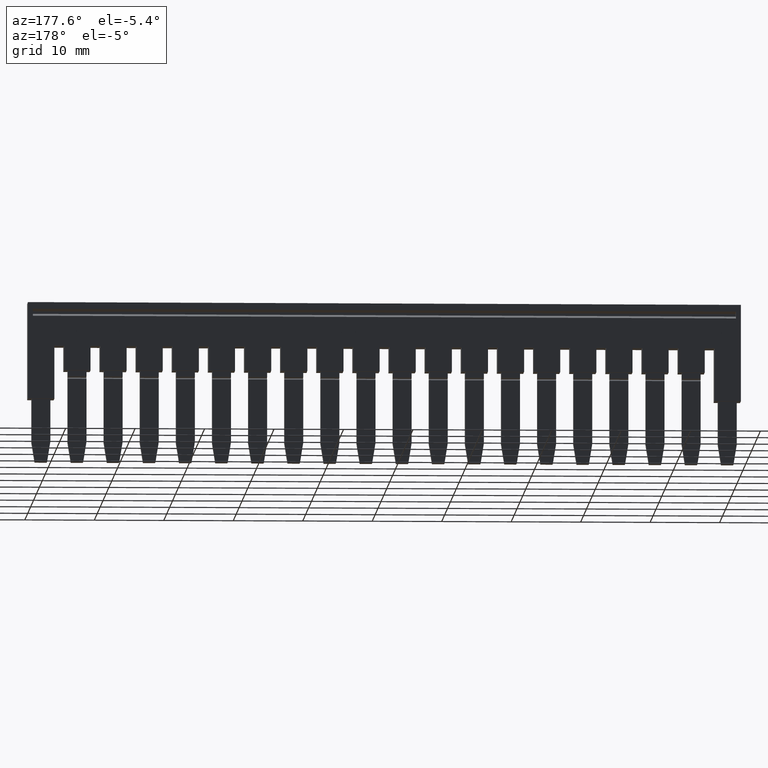
[diagram: clean part render]
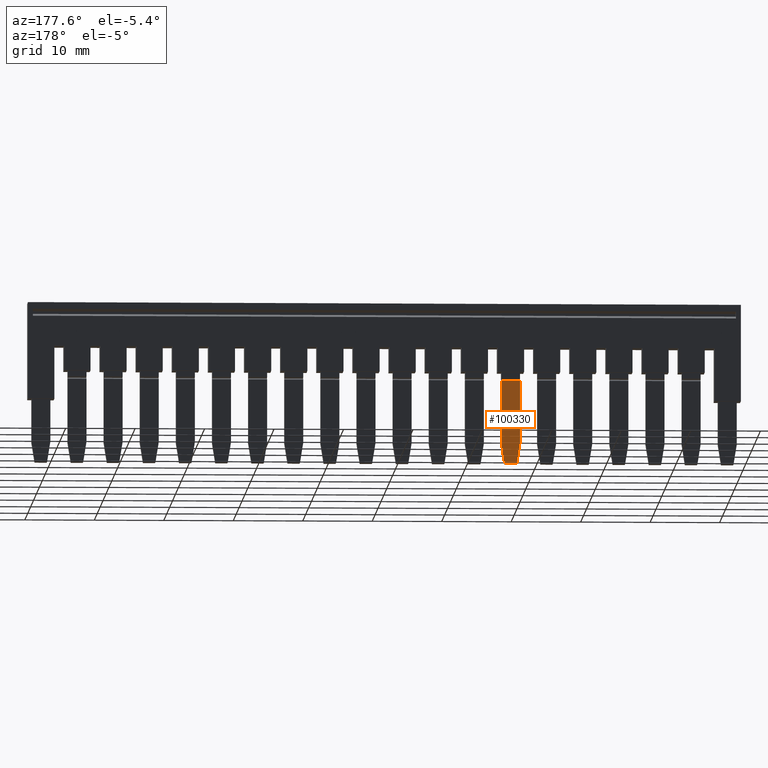
[diagram: same view with one face highlighted and labeled with its STEP entity id]
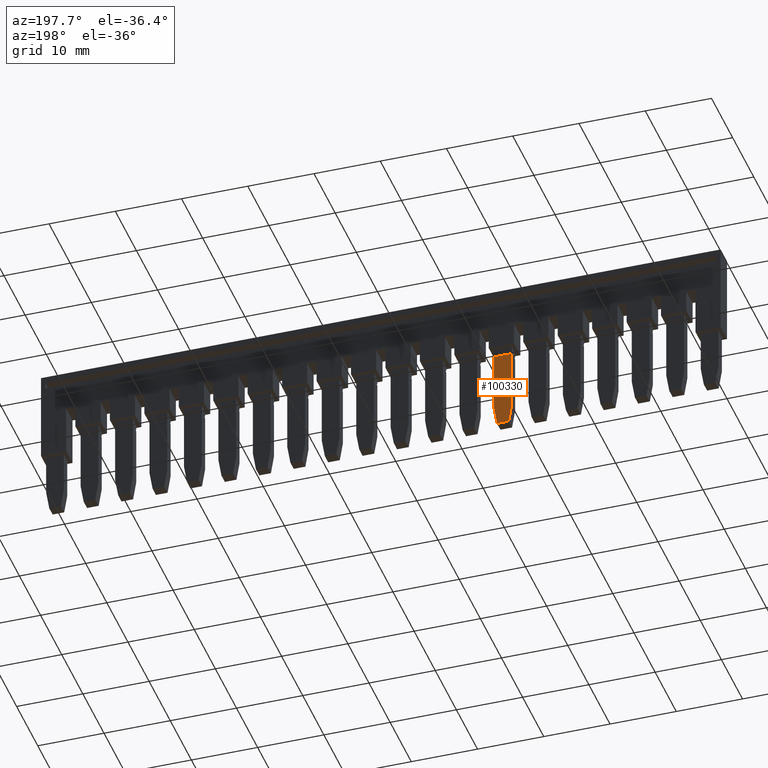
[diagram: same view with one face highlighted and labeled with its STEP entity id]
A machine part, auxiliary view. The second image highlights one B-rep face of the part: STEP entity #100330.
A second angle (auxiliary view) of the same face is appended — the face is thin or edge-on in the first view.
In plain terms, the highlighted planar face has unit normal (0, 1, 0).
Its self-contained STEP definition (entity closure, byte-faithful):
#57330=CARTESIAN_POINT('',(3.30716722168536,-27.6497789998261,
113.779551985078));
#57340=DIRECTION('',(-1.,0.,0.));
#57350=DIRECTION('',(0.,-1.,0.));
#57360=AXIS2_PLACEMENT_3D('',#57330,#57340,#57350);
#57370=PLANE('',#57360);
#65420=CARTESIAN_POINT('',(3.30716722168536,0.,86.3200000009647));
#65430=DIRECTION('',(0.,-1.,-9.11930314421364E-17));
#65440=VECTOR('',#65430,1.);
#65450=LINE('',#65420,#65440);
#65620=CARTESIAN_POINT('',(3.30716722168536,-19.8610705438387,
86.3200000009647));
#65630=VERTEX_POINT('',#65620);
#65660=CARTESIAN_POINT('',(3.30716722168536,-28.9807420624754,
86.3200000009648));
#65670=VERTEX_POINT('',#65660);
#65680=EDGE_CURVE('',#65630,#65670,#65450,.T.);
#65860=CARTESIAN_POINT('',(3.30716722168536,0.,89.0000000009637));
#65870=DIRECTION('',(0.,1.,2.3789721411555E-16));
#65880=VECTOR('',#65870,1.);
#65890=LINE('',#65860,#65880);
#66220=CARTESIAN_POINT('',(3.30716722168536,-31.8500000022958,
88.536810949968));
#66230=VERTEX_POINT('',#66220);
#66260=CARTESIAN_POINT('',(3.30716722168536,0.,93.6784090860341));
#66270=DIRECTION('',(0.,0.987219178105449,0.159368423411924));
#66280=VECTOR('',#66270,1.);
#66290=LINE('',#66260,#66280);
#66300=CARTESIAN_POINT('',(3.30716722168536,-28.980742062475,
89.0000000009637));
#66310=VERTEX_POINT('',#66300);
#66320=EDGE_CURVE('',#66230,#66310,#66290,.T.);
#66600=CARTESIAN_POINT('',(3.30716722168536,-31.8500000022956,
86.7831890519603));
#66610=VERTEX_POINT('',#66600);
#66640=CARTESIAN_POINT('',(3.30716722168536,-31.850000002283,0.));
#66650=DIRECTION('',(0.,-1.44960956186225E-13,1.));
#66660=VECTOR('',#66650,1.);
#66670=LINE('',#66640,#66660);
#66680=EDGE_CURVE('',#66610,#66230,#66670,.T.);
#66880=CARTESIAN_POINT('',(3.30716722168536,0.,81.6415909158943));
#66890=DIRECTION('',(0.,-0.987219178105449,0.159368423411924));
#66900=VECTOR('',#66890,1.);
#66910=LINE('',#66880,#66900);
#66920=EDGE_CURVE('',#65670,#66610,#66910,.T.);
#67300=CARTESIAN_POINT('',(3.30716722168536,-19.8610705438387,
89.0000000009636));
#67310=VERTEX_POINT('',#67300);
#67320=EDGE_CURVE('',#66310,#67310,#65890,.T.);
#100200=ORIENTED_EDGE('',*,*,#67320,.T.);
#100210=ORIENTED_EDGE('',*,*,#66320,.T.);
#100220=ORIENTED_EDGE('',*,*,#66680,.T.);
#100230=ORIENTED_EDGE('',*,*,#66920,.T.);
#100240=ORIENTED_EDGE('',*,*,#65680,.T.);
#100250=CARTESIAN_POINT('',(3.30716722168536,-19.8610705438387,41.874984
));
#100260=DIRECTION('',(0.,0.,-1.));
#100270=VECTOR('',#100260,1.);
#100280=LINE('',#100250,#100270);
#100290=EDGE_CURVE('',#67310,#65630,#100280,.T.);
#100300=ORIENTED_EDGE('',*,*,#100290,.T.);
#100310=EDGE_LOOP('',(#100300,#100240,#100230,#100220,#100210,#100200));
#100320=FACE_OUTER_BOUND('',#100310,.T.);
#100330=ADVANCED_FACE('',(#100320),#57370,.T.);